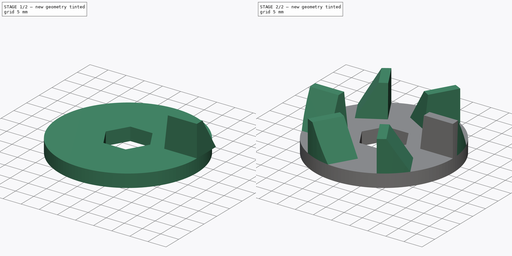
[diagram: build sequence overview — one tinted view per stage of 2, left to right]
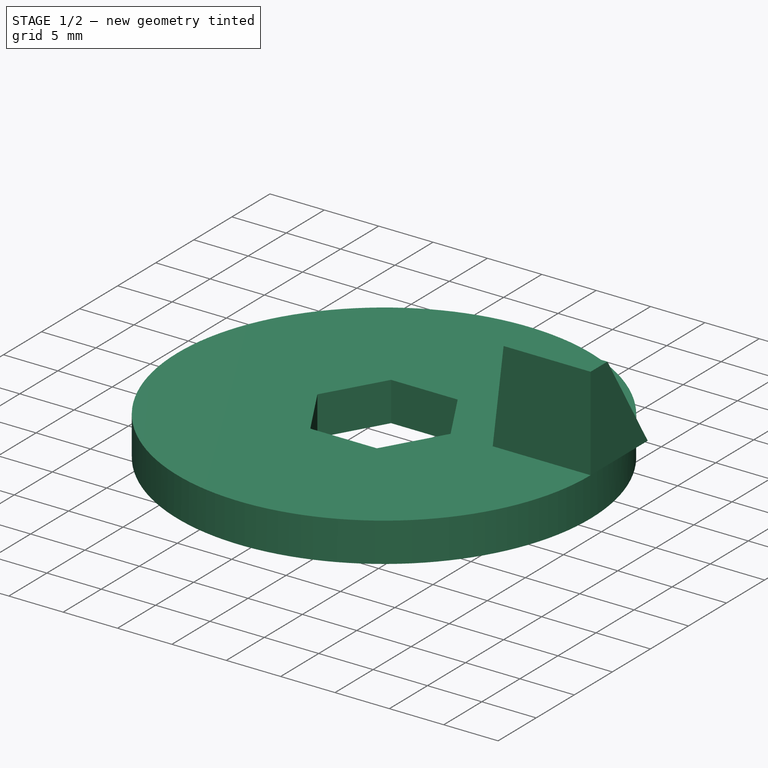
[diagram: stage 1 of 2 — iso view after this stage's code; geometry added in this stage tinted green]
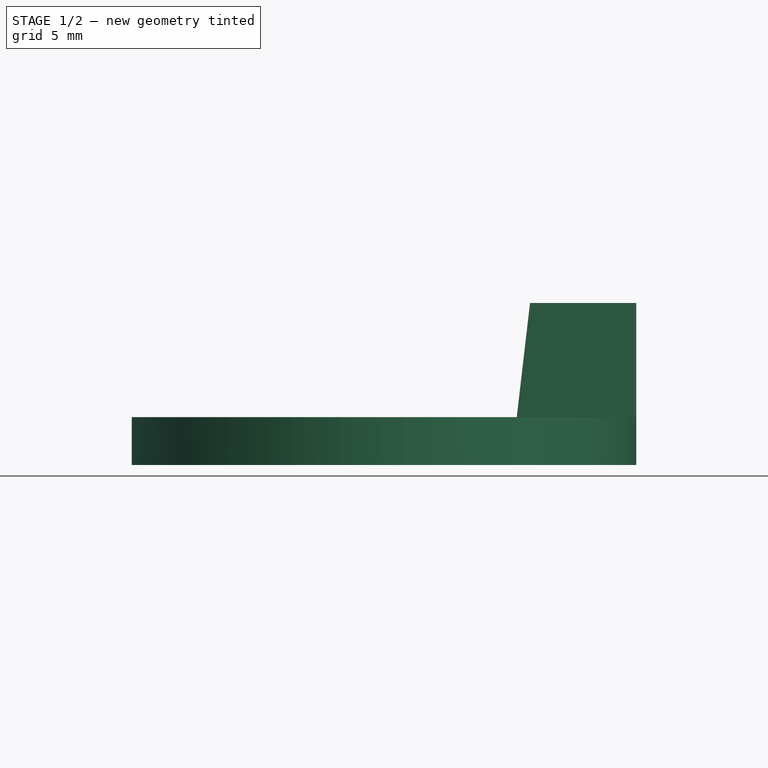
[diagram: stage 1 of 2 — front view after this stage's code; geometry added in this stage tinted green]
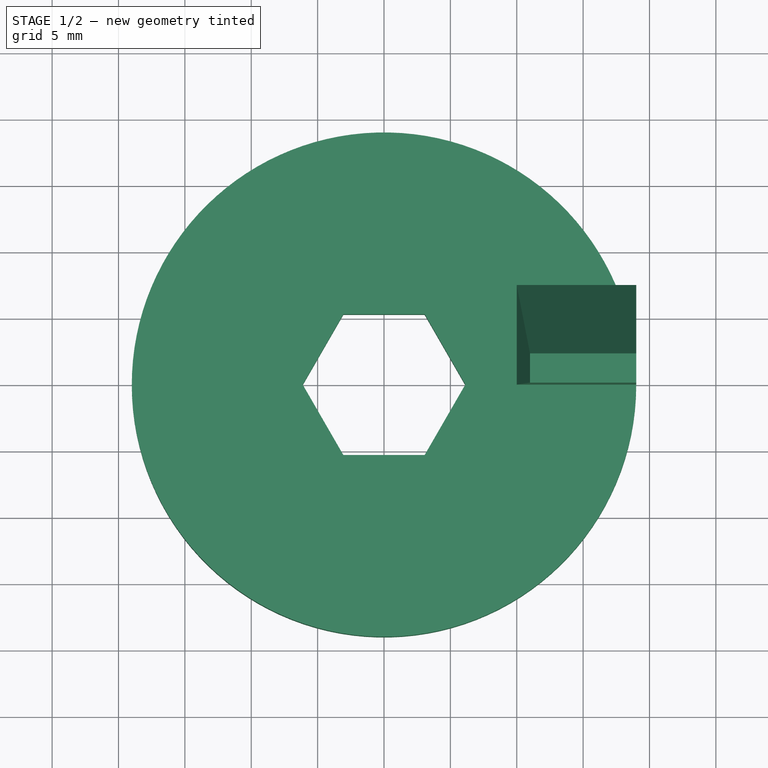
[diagram: stage 1 of 2 — top view after this stage's code; geometry added in this stage tinted green]
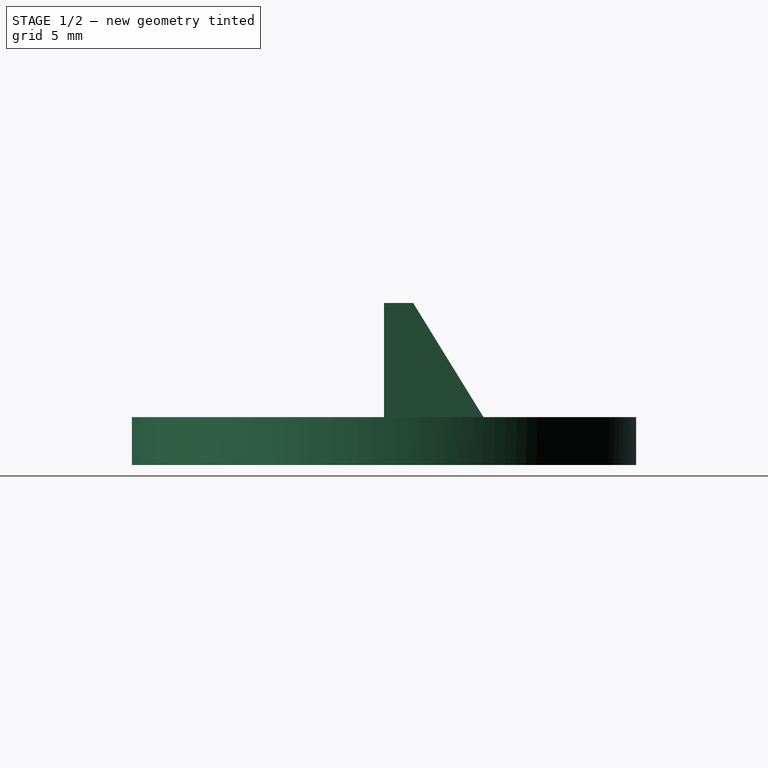
[diagram: stage 1 of 2 — right view after this stage's code; geometry added in this stage tinted green]
FCSTD DOCUMENT  (FreeCAD 0.21R33694 (Git))
Label: gear
License: All rights reserved
LicenseURL: http://en.wikipedia.org/wiki/All_rights_reserved
objects: Sketcher::SketchObject×2, PartDesign::Pad×1, PartDesign::AdditiveWedge×1, PartDesign::PolarPattern×1, PartDesign::Pocket×1, PartDesign::Body×1
note: 10 computed .brp shape members not serialized (recipe doc carries the construction recipe); baked Part::Feature solids carry a one-line shape summary decoded from their .brp

FEATURE [Sketcher::SketchObject] Sketch
  FullyConstrained = true
  MapMode = 5
  Support = -> [XY_Plane]
  sketch-geometry (8):
    g0: Circle CenterX=0 CenterY=0 CenterZ=0 NormalX=0 NormalY=0 NormalZ=1 AngleXU=0 Radius=19
    g1: LineSegment StartX=-6.125 StartY=0 StartZ=0 EndX=-3.0625 EndY=-5.30441 EndZ=0
    g2: LineSegment StartX=-3.0625 StartY=-5.30441 StartZ=0 EndX=3.0625 EndY=-5.30441 EndZ=0
    g3: LineSegment StartX=3.0625 StartY=-5.30441 StartZ=0 EndX=6.125 EndY=2.7045e-12 EndZ=0
    g4: LineSegment StartX=6.125 StartY=2.7045e-12 StartZ=0 EndX=3.0625 EndY=5.30441 EndZ=0
    g5: LineSegment StartX=3.0625 StartY=5.30441 StartZ=0 EndX=-3.0625 EndY=5.30441 EndZ=0
    g6: LineSegment StartX=-3.0625 StartY=5.30441 StartZ=0 EndX=-6.125 EndY=0 EndZ=0
    g7: Circle CenterX=0 CenterY=0 CenterZ=0 NormalX=0 NormalY=0 NormalZ=1 AngleXU=0 Radius=6.125
  constraints (18):
    c: Diameter(g0) = 38
    c: Coincident(g-1,g0)
    c: Coincident(g1,g2)
    c: Coincident(g2,g3)
    c: Coincident(g3,g4)
    c: Coincident(g4,g5)
    c: Coincident(g5,g6)
    c: Coincident(g6,g1)
    c: Equal(g1, g2-g6) x5
    c: PointOnObject(g1,g7)
    c: PointOnObject(g2,g7)
    c: PointOnObject(g3,g7)
    c: PointOnObject(g4,g7)
    c: PointOnObject(g5,g7)
    c: PointOnObject(g6,g7)
    c: Coincident(g7,g0)
    c: Diameter(g7) = 12.25
    c: PointOnObject(g1,g-1)
FEATURE [PartDesign::Pad] Pad
  Direction = (0,0,1)
  Length = 3.6
  Length2 = 10
  Profile = -> Sketch
  ReferenceAxis = -> Sketch [N_Axis]
  Type = 0
FEATURE [PartDesign::AdditiveWedge] Wedge
  AttacherType = Attacher::AttachEngine3D
  AttachmentOffset = pos=(0,3.6,9) rot=(0,0,1;0rad)
  BaseFeature = -> Pad
  MapMode = 5
  Placement = pos=(9,-1.2e-15,3.6) rot=(0.57735,0.57735,0.57735;2.0944rad)
  Support = -> [YZ_Plane]
  X2max = 2.2
  X2min = 0
  Xmax = 7.5
  Xmin = 0
  Ymax = 8.6
  Ymin = 0
  Z2max = 10
  Z2min = 2
  Zmax = 10
  Zmin = 1
  expr: .AttachmentOffset.Base.y = Pad.Length
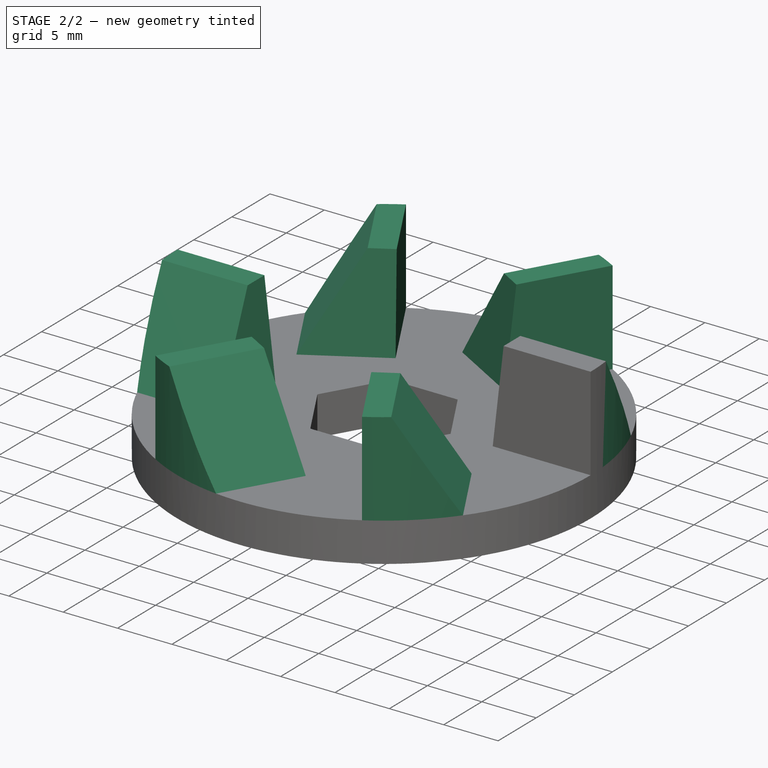
[diagram: stage 2 of 2 — iso view after this stage's code; geometry added in this stage tinted green]
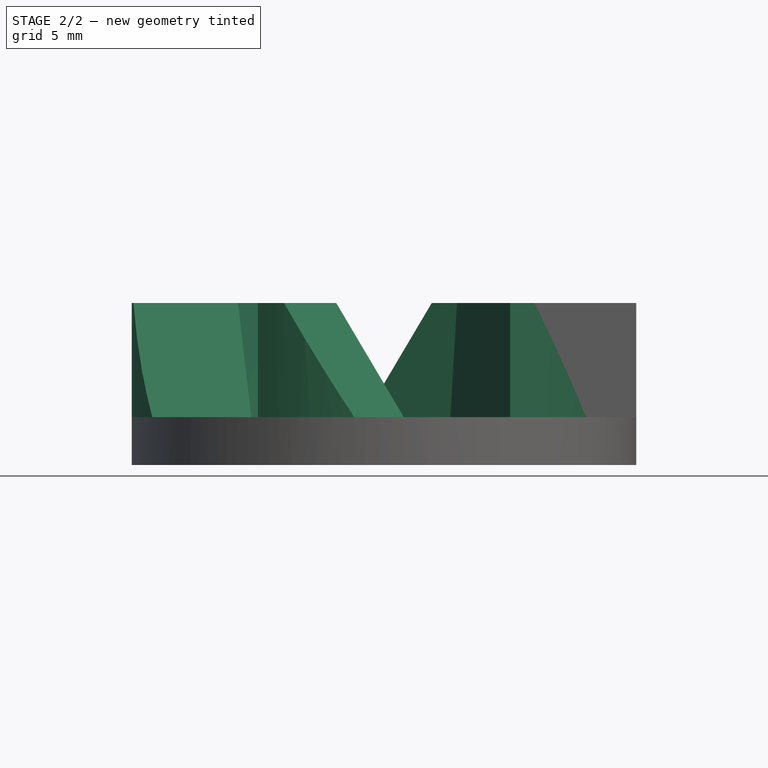
[diagram: stage 2 of 2 — front view after this stage's code; geometry added in this stage tinted green]
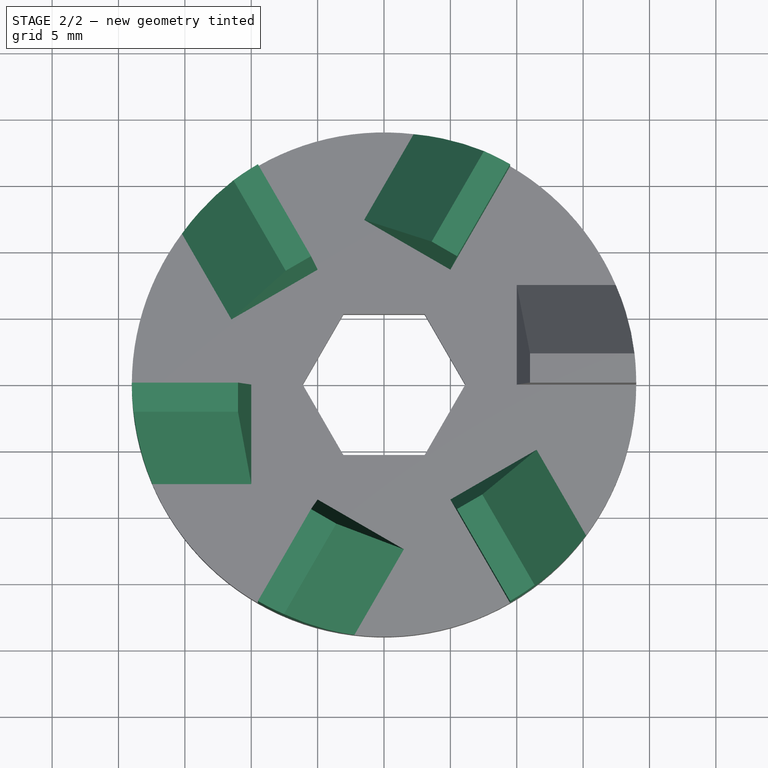
[diagram: stage 2 of 2 — top view after this stage's code; geometry added in this stage tinted green]
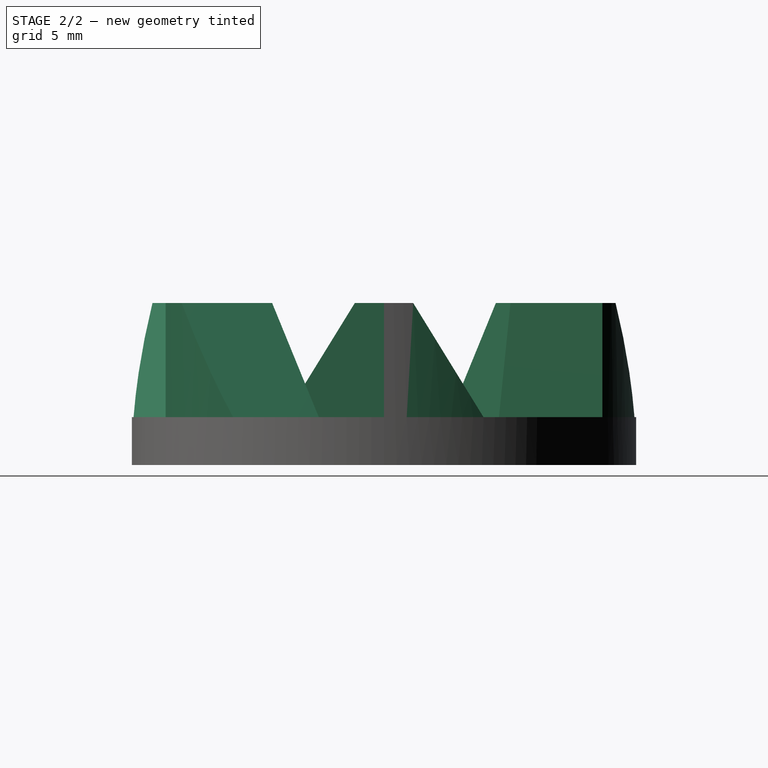
[diagram: stage 2 of 2 — right view after this stage's code; geometry added in this stage tinted green]
FEATURE [PartDesign::PolarPattern] PolarPattern
  Angle = 360
  Axis = -> Z_Axis
  BaseFeature = -> Wedge
  Occurrences = 6
  Originals = -> [Wedge]
  Placement = pos=(9,-1.2e-15,3.6) rot=(0.57735,0.57735,0.57735;2.0944rad)
FEATURE [Sketcher::SketchObject] Sketch001
  FullyConstrained = true
  MapMode = 5
  Support = -> [XY_Plane]
  sketch-geometry (2):
    g0: Circle CenterX=0 CenterY=0 CenterZ=0 NormalX=0 NormalY=0 NormalZ=1 AngleXU=0 Radius=19
    g1: Circle CenterX=0 CenterY=0 CenterZ=0 NormalX=0 NormalY=0 NormalZ=1 AngleXU=0 Radius=20.815
  constraints (4):
    c: Coincident(g1,g0)
    c: Diameter(g1) = 41.63
    c: Diameter(g0) = 38
    c: Coincident(g-1,g0)
FEATURE [PartDesign::Pocket] Pocket
  BaseFeature = -> PolarPattern
  Direction = (0,0,-1)
  Length = 9
  Length2 = 16
  Placement = pos=(9,-1.2e-15,3.6) rot=(0.57735,0.57735,0.57735;2.0944rad)
  Profile = -> Sketch001
  ReferenceAxis = -> Sketch001 [N_Axis]
  Type = 4
FEATURE [PartDesign::Body] Body
  Group = -> [Sketch,Pad,Wedge,PolarPattern,Sketch001,Pocket]
  Origin = -> Origin
  Tip = -> Pocket
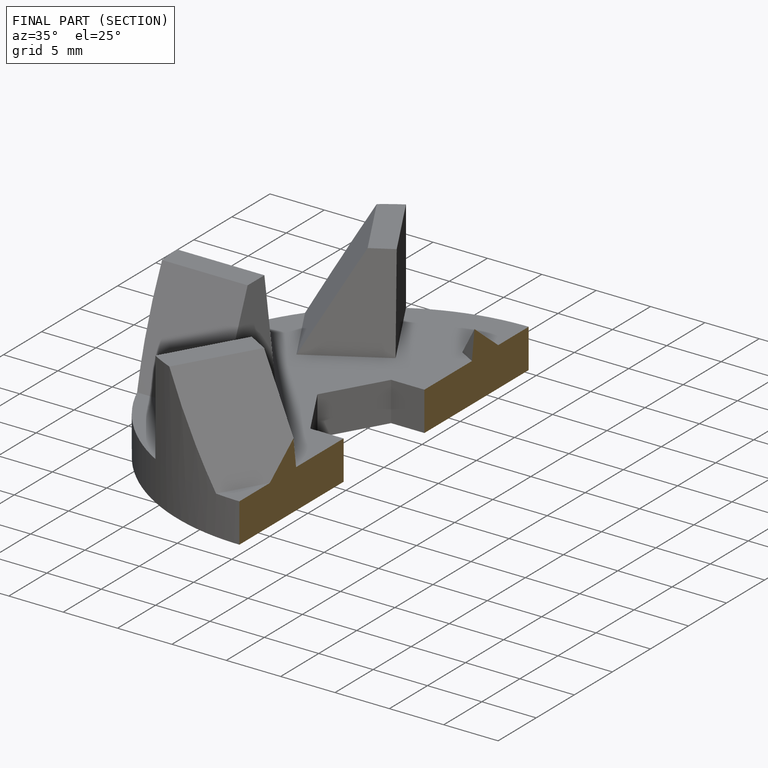
[diagram: finished part — half-section view (interior)]
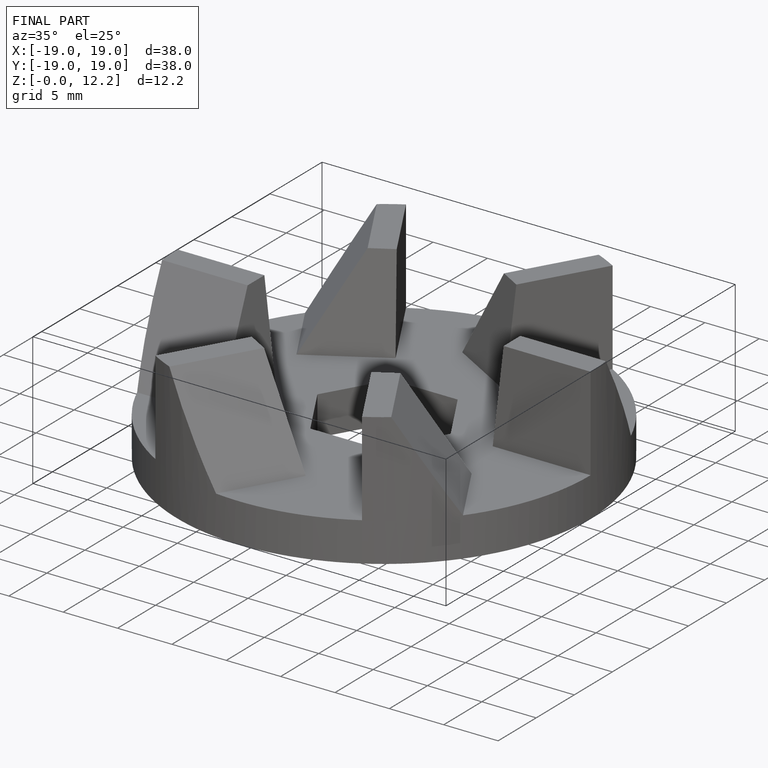
[diagram: finished part — iso view with bounding-box wireframe]
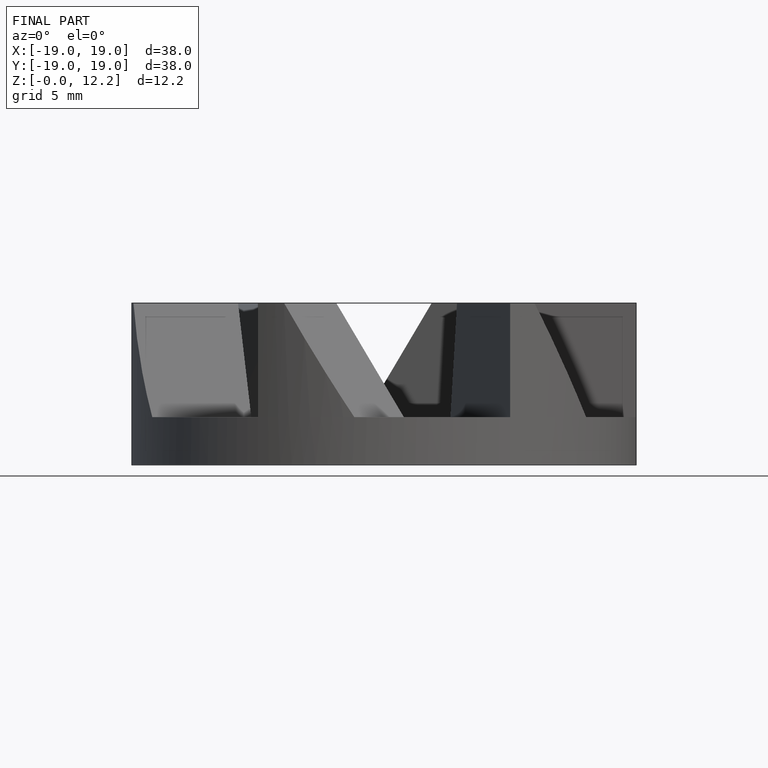
[diagram: finished part — front view with bounding-box wireframe]
